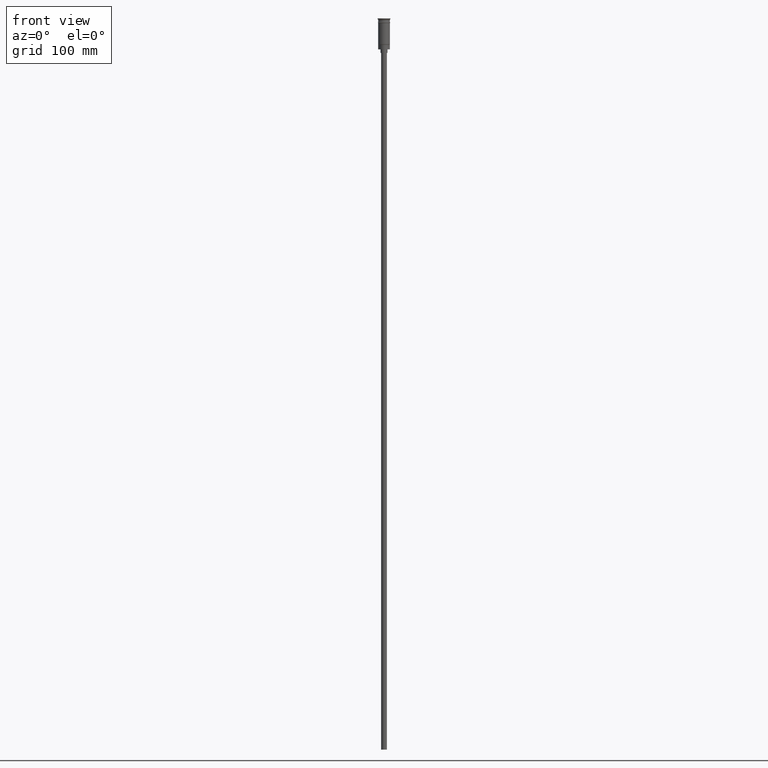
[diagram: clean part render]
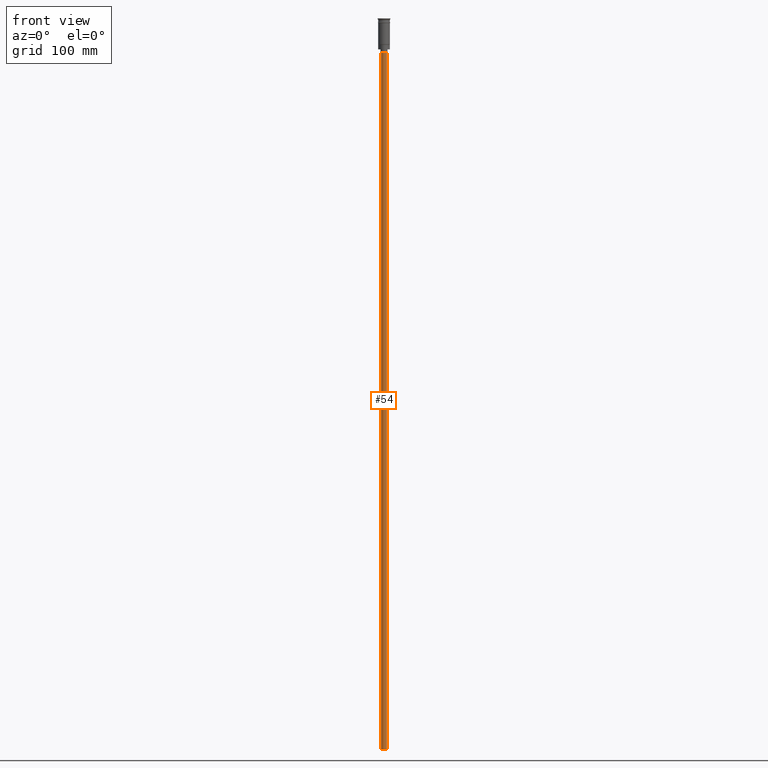
[diagram: same view with one face highlighted and labeled with its STEP entity id]
A machine part, front view. The second image highlights one B-rep face of the part: STEP entity #54.
In plain terms, the highlighted cylindrical surface (edge-blend (fillet) strip) has radius 2.5 mm, axis along (-0, -0, 1).
Its self-contained STEP definition (entity closure, byte-faithful):
#54 = ADVANCED_FACE ( 'NONE', ( #384 ), #883, .T. ) ;
#63 = DIRECTION ( 'NONE',  ( -0.000000000000000000, -0.000000000000000000, 1.000000000000000000 ) ) ;
#129 = CIRCLE ( 'NONE', #871, 2.500000000000000000 ) ;
#130 = CARTESIAN_POINT ( 'NONE',  ( -2.500000000000000000, 3.061616997868383141E-16, -626.5000000000000000 ) ) ;
#152 = VECTOR ( 'NONE', #63, 1000.000000000000000 ) ;
#167 = CARTESIAN_POINT ( 'NONE',  ( -2.500000000000000000, 3.061616997868383141E-16, -626.5000000000000000 ) ) ;
#168 = EDGE_LOOP ( 'NONE', ( #1505, #630, #445, #405 ) ) ;
#212 = CARTESIAN_POINT ( 'NONE',  ( 2.500000000000000000, 0.000000000000000000, -29.50000000000000000 ) ) ;
#278 = DIRECTION ( 'NONE',  ( -0.000000000000000000, -0.000000000000000000, 1.000000000000000000 ) ) ;
#296 = DIRECTION ( 'NONE',  ( -1.000000000000000000, 0.000000000000000000, 0.000000000000000000 ) ) ;
#306 = DIRECTION ( 'NONE',  ( 0.000000000000000000, 0.000000000000000000, -1.000000000000000000 ) ) ;
#329 = LINE ( 'NONE', #687, #152 ) ;
#384 = FACE_OUTER_BOUND ( 'NONE', #168, .T. ) ;
#399 = CARTESIAN_POINT ( 'NONE',  ( 2.500000000000000000, 0.000000000000000000, -626.5000000000000000 ) ) ;
#405 = ORIENTED_EDGE ( 'NONE', *, *, #1409, .T. ) ;
#441 = CARTESIAN_POINT ( 'NONE',  ( 0.000000000000000000, 0.000000000000000000, -29.50000000000000000 ) ) ;
#445 = ORIENTED_EDGE ( 'NONE', *, *, #1052, .T. ) ;
#542 = EDGE_CURVE ( 'NONE', #1306, #1005, #1240, .T. ) ;
#564 = EDGE_CURVE ( 'NONE', #640, #1306, #787, .T. ) ;
#630 = ORIENTED_EDGE ( 'NONE', *, *, #564, .F. ) ;
#636 = VECTOR ( 'NONE', #1117, 1000.000000000000000 ) ;
#640 = VERTEX_POINT ( 'NONE', #399 ) ;
#672 = CARTESIAN_POINT ( 'NONE',  ( 0.000000000000000000, 0.000000000000000000, -626.5000000000000000 ) ) ;
#687 = CARTESIAN_POINT ( 'NONE',  ( 2.500000000000000000, 0.000000000000000000, -626.5000000000000000 ) ) ;
#787 = CIRCLE ( 'NONE', #1026, 2.500000000000000000 ) ;
#806 = DIRECTION ( 'NONE',  ( -1.000000000000000000, 0.000000000000000000, 0.000000000000000000 ) ) ;
#871 = AXIS2_PLACEMENT_3D ( 'NONE', #441, #1068, #296 ) ;
#883 = CYLINDRICAL_SURFACE ( 'NONE', #1312, 2.500000000000000000 ) ;
#902 = DIRECTION ( 'NONE',  ( 1.000000000000000000, 0.000000000000000000, 0.000000000000000000 ) ) ;
#1005 = VERTEX_POINT ( 'NONE', #1053 ) ;
#1020 = VERTEX_POINT ( 'NONE', #212 ) ;
#1026 = AXIS2_PLACEMENT_3D ( 'NONE', #672, #306, #806 ) ;
#1052 = EDGE_CURVE ( 'NONE', #640, #1020, #329, .T. ) ;
#1053 = CARTESIAN_POINT ( 'NONE',  ( -2.500000000000000000, 3.061616997868383141E-16, -29.50000000000000000 ) ) ;
#1068 = DIRECTION ( 'NONE',  ( 0.000000000000000000, 0.000000000000000000, -1.000000000000000000 ) ) ;
#1117 = DIRECTION ( 'NONE',  ( -0.000000000000000000, -0.000000000000000000, 1.000000000000000000 ) ) ;
#1240 = LINE ( 'NONE', #130, #636 ) ;
#1306 = VERTEX_POINT ( 'NONE', #167 ) ;
#1312 = AXIS2_PLACEMENT_3D ( 'NONE', #1385, #278, #902 ) ;
#1385 = CARTESIAN_POINT ( 'NONE',  ( 0.000000000000000000, 0.000000000000000000, -626.5000000000000000 ) ) ;
#1409 = EDGE_CURVE ( 'NONE', #1020, #1005, #129, .T. ) ;
#1505 = ORIENTED_EDGE ( 'NONE', *, *, #542, .F. ) ;